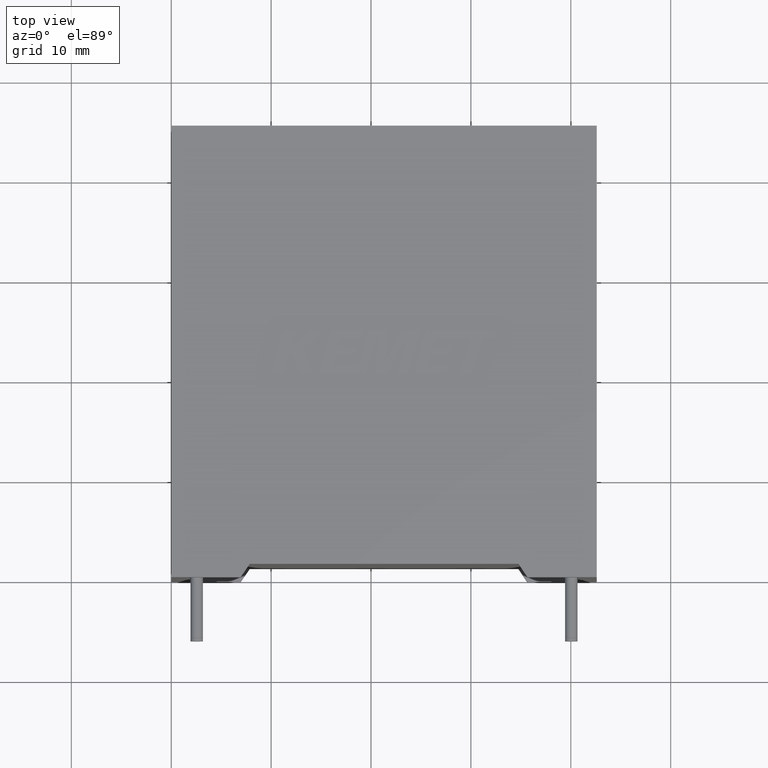
[diagram: clean part render]
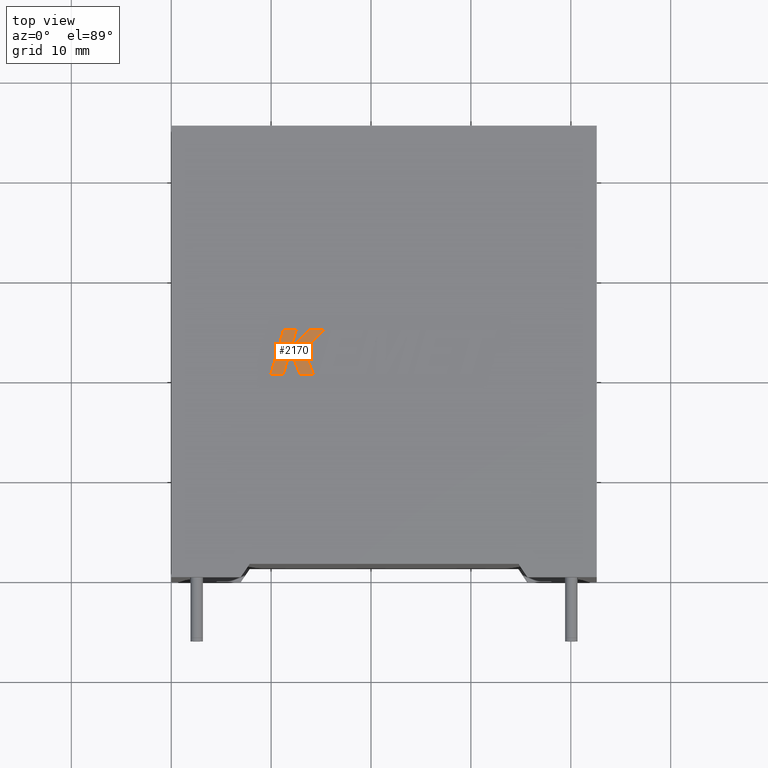
[diagram: same view with one face highlighted and labeled with its STEP entity id]
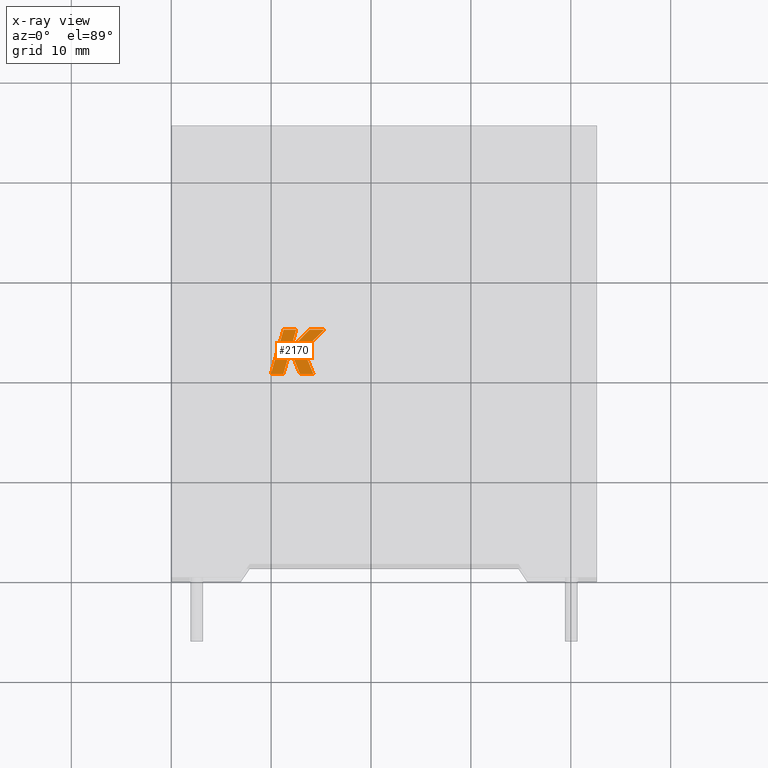
[diagram: x-ray of the same camera — body ghosted, the highlighted face saturated]
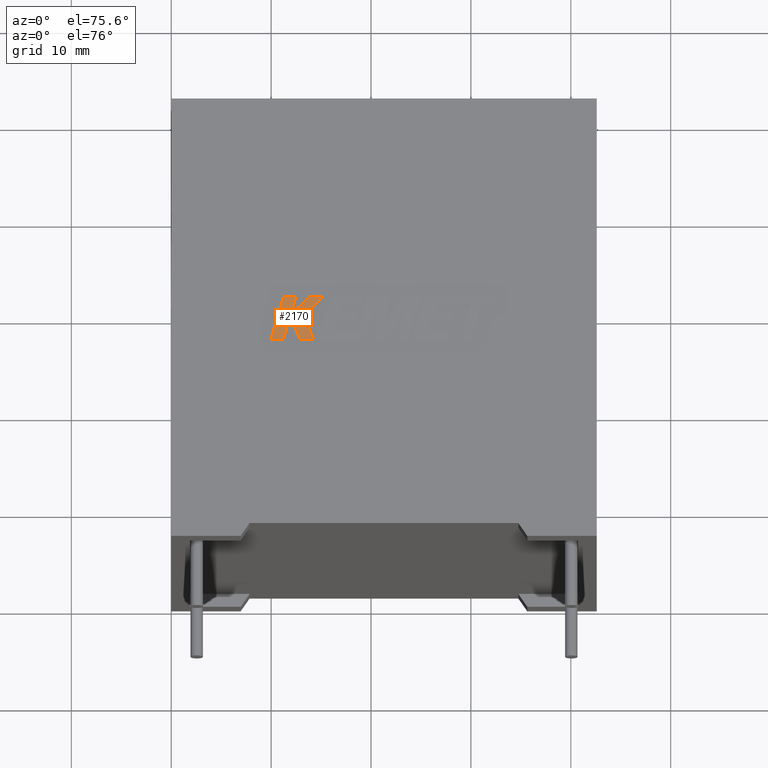
[diagram: same view with one face highlighted and labeled with its STEP entity id]
A machine part, top view. The second image highlights one B-rep face of the part: STEP entity #2170.
The next image is the same camera in x-ray: the body ghosted, the highlighted face saturated — about 0% of this face is hidden behind the body in this view.
A second angle (auxiliary view) of the same face is appended — the face is thin or edge-on in the first view.
In plain terms, the highlighted planar face has unit normal (0, 0, -1).
Its self-contained STEP definition (entity closure, byte-faithful):
#2 = CARTESIAN_POINT ( 'NONE',  ( 12.88666550355474500, 20.32643999999988100, 30.40500000000000100 ) ) ;
#6 = ORIENTED_EDGE ( 'NONE', *, *, #1940, .T. ) ;
#133 = DIRECTION ( 'NONE',  ( -1.000000000000000000, -0.0000000000000000000, -0.0000000000000000000 ) ) ;
#145 = CARTESIAN_POINT ( 'NONE',  ( 9.968399999999999000, 20.32644000000000200, 30.40500000000000100 ) ) ;
#149 = VECTOR ( 'NONE', #2882, 1000.000000000000100 ) ;
#195 = VERTEX_POINT ( 'NONE', #1356 ) ;
#241 = VECTOR ( 'NONE', #1381, 1000.000000000000000 ) ;
#270 = VECTOR ( 'NONE', #1963, 1000.000000000000000 ) ;
#276 = VERTEX_POINT ( 'NONE', #1433 ) ;
#304 = CARTESIAN_POINT ( 'NONE',  ( 14.23625254107705000, 20.32643999999988100, 30.40500000000000100 ) ) ;
#375 = VERTEX_POINT ( 'NONE', #1294 ) ;
#418 = EDGE_CURVE ( 'NONE', #1989, #276, #618, .T. ) ;
#424 = VECTOR ( 'NONE', #2354, 1000.000000000000000 ) ;
#449 = LINE ( 'NONE', #757, #2302 ) ;
#507 = ORIENTED_EDGE ( 'NONE', *, *, #1393, .T. ) ;
#545 = LINE ( 'NONE', #705, #2316 ) ;
#608 = DIRECTION ( 'NONE',  ( 1.000000000000000000, -0.0000000000000000000, -0.0000000000000000000 ) ) ;
#618 = LINE ( 'NONE', #304, #701 ) ;
#644 = LINE ( 'NONE', #1092, #1401 ) ;
#671 = DIRECTION ( 'NONE',  ( 1.000000000000000000, -9.627704771323333000E-014, -0.0000000000000000000 ) ) ;
#701 = VECTOR ( 'NONE', #608, 1000.000000000000000 ) ;
#705 = CARTESIAN_POINT ( 'NONE',  ( 15.30860698889077700, 24.76197267852246900, 30.40500000000000100 ) ) ;
#706 = VERTEX_POINT ( 'NONE', #2108 ) ;
#710 = EDGE_CURVE ( 'NONE', #2952, #2135, #1059, .T. ) ;
#725 = EDGE_CURVE ( 'NONE', #2135, #2798, #2783, .T. ) ;
#735 = EDGE_LOOP ( 'NONE', ( #813, #2402, #507, #1124, #2797, #2453, #6, #1219, #2547, #3037, #1087 ) ) ;
#757 = CARTESIAN_POINT ( 'NONE',  ( 12.88666550355474500, 20.32643999999988100, 30.40500000000000100 ) ) ;
#766 = VECTOR ( 'NONE', #671, 1000.000000000000000 ) ;
#777 = DIRECTION ( 'NONE',  ( 0.7145695586381801700, 0.6995643972270433300, -0.0000000000000000000 ) ) ;
#788 = CARTESIAN_POINT ( 'NONE',  ( 12.50604387609552500, 24.76197267852246900, 30.40500000000000100 ) ) ;
#813 = ORIENTED_EDGE ( 'NONE', *, *, #1768, .T. ) ;
#894 = CARTESIAN_POINT ( 'NONE',  ( 11.96385158601736800, 22.87049005833889500, 30.40500000000000100 ) ) ;
#903 = CARTESIAN_POINT ( 'NONE',  ( 11.91995237585619400, 22.73481386215855700, 30.40500000000000100 ) ) ;
#1029 = DIRECTION ( 'NONE',  ( -0.7059037656364544100, -0.7083077534943929000, -0.0000000000000000000 ) ) ;
#1056 = CARTESIAN_POINT ( 'NONE',  ( 11.96385158601736800, 22.87049005833889500, 30.40500000000000100 ) ) ;
#1059 = LINE ( 'NONE', #2338, #424 ) ;
#1076 = PLANE ( 'NONE',  #1777 ) ;
#1087 = ORIENTED_EDGE ( 'NONE', *, *, #725, .T. ) ;
#1092 = CARTESIAN_POINT ( 'NONE',  ( 13.84891453730703000, 24.76197267852246900, 30.40500000000000100 ) ) ;
#1124 = ORIENTED_EDGE ( 'NONE', *, *, #2975, .T. ) ;
#1168 = LINE ( 'NONE', #2185, #270 ) ;
#1193 = CARTESIAN_POINT ( 'NONE',  ( 9.968399999999999000, 20.32644000000000200, 30.40500000000000100 ) ) ;
#1219 = ORIENTED_EDGE ( 'NONE', *, *, #2743, .T. ) ;
#1294 = CARTESIAN_POINT ( 'NONE',  ( 15.30860698889077700, 24.76197267852246900, 30.40500000000000100 ) ) ;
#1355 = CARTESIAN_POINT ( 'NONE',  ( 13.84891453730703000, 24.76197267852246900, 30.40500000000000100 ) ) ;
#1356 = CARTESIAN_POINT ( 'NONE',  ( 13.23796705003678700, 22.73481386215858900, 30.40500000000000100 ) ) ;
#1369 = CARTESIAN_POINT ( 'NONE',  ( 11.22966263946173800, 20.32643999999988100, 30.40500000000000100 ) ) ;
#1381 = DIRECTION ( 'NONE',  ( -1.000000000000000000, -0.0000000000000000000, -0.0000000000000000000 ) ) ;
#1383 = VERTEX_POINT ( 'NONE', #1193 ) ;
#1393 = EDGE_CURVE ( 'NONE', #2222, #706, #2308, .T. ) ;
#1401 = VECTOR ( 'NONE', #133, 1000.000000000000000 ) ;
#1433 = CARTESIAN_POINT ( 'NONE',  ( 14.23625254107705000, 20.32643999999988100, 30.40500000000000100 ) ) ;
#1590 = CARTESIAN_POINT ( 'NONE',  ( -0.1503410928526370500, -1.896653983250437700, 30.40500000000000100 ) ) ;
#1768 = EDGE_CURVE ( 'NONE', #2798, #1383, #2544, .T. ) ;
#1777 = AXIS2_PLACEMENT_3D ( 'NONE', #1590, #1847, #2794 ) ;
#1847 = DIRECTION ( 'NONE',  ( 0.0000000000000000000, 0.0000000000000000000, -1.000000000000000000 ) ) ;
#1940 = EDGE_CURVE ( 'NONE', #195, #375, #545, .T. ) ;
#1960 = DIRECTION ( 'NONE',  ( 0.3725077383644760400, -0.9280290862136720800, -0.0000000000000000000 ) ) ;
#1963 = DIRECTION ( 'NONE',  ( -0.3829140317377009400, 0.9237839814038664200, -0.0000000000000000000 ) ) ;
#1989 = VERTEX_POINT ( 'NONE', #2 ) ;
#2052 = LINE ( 'NONE', #2128, #766 ) ;
#2067 = EDGE_CURVE ( 'NONE', #2775, #2952, #2939, .T. ) ;
#2076 = CARTESIAN_POINT ( 'NONE',  ( 11.24309539564485400, 24.76197267852246900, 30.40500000000000100 ) ) ;
#2088 = DIRECTION ( 'NONE',  ( -0.2762033010251979100, -0.9610992334315868700, -0.0000000000000000000 ) ) ;
#2108 = CARTESIAN_POINT ( 'NONE',  ( 11.91995237585619400, 22.73481386215855700, 30.40500000000000100 ) ) ;
#2128 = CARTESIAN_POINT ( 'NONE',  ( 11.22966263946173800, 20.32643999999988100, 30.40500000000000100 ) ) ;
#2135 = VERTEX_POINT ( 'NONE', #788 ) ;
#2170 = ADVANCED_FACE ( 'NONE', ( #2772 ), #1076, .F. ) ;
#2185 = CARTESIAN_POINT ( 'NONE',  ( 13.23796705003678700, 22.73481386215858900, 30.40500000000000100 ) ) ;
#2222 = VERTEX_POINT ( 'NONE', #1369 ) ;
#2245 = VECTOR ( 'NONE', #2088, 1000.000000000000100 ) ;
#2262 = EDGE_CURVE ( 'NONE', #1383, #2222, #2052, .T. ) ;
#2302 = VECTOR ( 'NONE', #1960, 1000.000000000000000 ) ;
#2308 = LINE ( 'NONE', #903, #149 ) ;
#2316 = VECTOR ( 'NONE', #777, 999.9999999999998900 ) ;
#2338 = CARTESIAN_POINT ( 'NONE',  ( 12.50604387609552500, 24.76197267852246900, 30.40500000000000100 ) ) ;
#2340 = EDGE_CURVE ( 'NONE', #276, #195, #1168, .T. ) ;
#2354 = DIRECTION ( 'NONE',  ( 0.2755520632520629400, 0.9612861490927303600, -0.0000000000000000000 ) ) ;
#2402 = ORIENTED_EDGE ( 'NONE', *, *, #2262, .T. ) ;
#2453 = ORIENTED_EDGE ( 'NONE', *, *, #2340, .T. ) ;
#2544 = LINE ( 'NONE', #145, #2245 ) ;
#2547 = ORIENTED_EDGE ( 'NONE', *, *, #2067, .T. ) ;
#2620 = VECTOR ( 'NONE', #1029, 1000.000000000000000 ) ;
#2743 = EDGE_CURVE ( 'NONE', #375, #2775, #644, .T. ) ;
#2772 = FACE_OUTER_BOUND ( 'NONE', #735, .T. ) ;
#2775 = VERTEX_POINT ( 'NONE', #1355 ) ;
#2783 = LINE ( 'NONE', #2845, #241 ) ;
#2794 = DIRECTION ( 'NONE',  ( -1.000000000000000000, 0.0000000000000000000, -0.0000000000000000000 ) ) ;
#2797 = ORIENTED_EDGE ( 'NONE', *, *, #418, .T. ) ;
#2798 = VERTEX_POINT ( 'NONE', #2076 ) ;
#2845 = CARTESIAN_POINT ( 'NONE',  ( 11.24309539564485400, 24.76197267852246900, 30.40500000000000100 ) ) ;
#2882 = DIRECTION ( 'NONE',  ( 0.2755265765475139500, 0.9612934544747544500, -0.0000000000000000000 ) ) ;
#2939 = LINE ( 'NONE', #1056, #2620 ) ;
#2952 = VERTEX_POINT ( 'NONE', #894 ) ;
#2975 = EDGE_CURVE ( 'NONE', #706, #1989, #449, .T. ) ;
#3037 = ORIENTED_EDGE ( 'NONE', *, *, #710, .T. ) ;